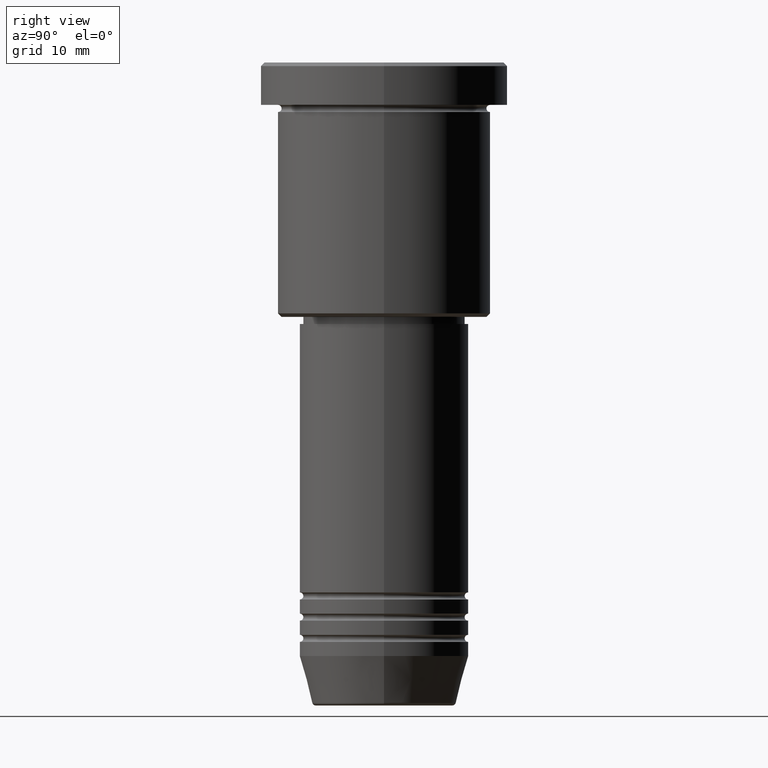
[diagram: clean part render]
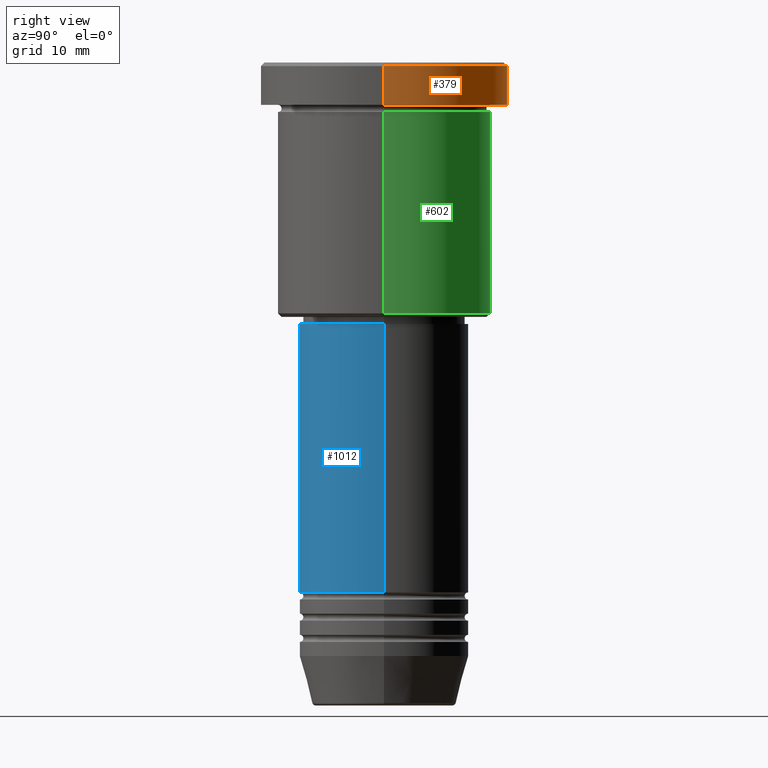
[diagram: same view with three faces highlighted in distinct colors, each labeled with its STEP entity id]
A machine part, right view with three faces highlighted in distinct colors.
Their STEP definitions:

[orange] entity #379 — the highlighted cylindrical surface (partial cylindrical patch) has radius 17.5 mm, axis along (-0, -0, 1).
#19 = VERTEX_POINT ( 'NONE', #635 ) ;
#92 = CARTESIAN_POINT ( 'NONE',  ( -17.50000000000000000, 2.143131898507868248E-15, -5.999999999999995559 ) ) ;
#105 = VECTOR ( 'NONE', #193, 1000.000000000000000 ) ;
#158 = DIRECTION ( 'NONE',  ( -0.000000000000000000, -0.000000000000000000, 1.000000000000000000 ) ) ;
#193 = DIRECTION ( 'NONE',  ( -0.000000000000000000, -0.000000000000000000, 1.000000000000000000 ) ) ;
#219 = ORIENTED_EDGE ( 'NONE', *, *, #1150, .T. ) ;
#221 = DIRECTION ( 'NONE',  ( 1.000000000000000000, 0.000000000000000000, 0.000000000000000000 ) ) ;
#238 = AXIS2_PLACEMENT_3D ( 'NONE', #676, #1027, #744 ) ;
#345 = EDGE_CURVE ( 'NONE', #19, #806, #801, .T. ) ;
#379 = ADVANCED_FACE ( 'NONE', ( #725 ), #1084, .T. ) ;
#393 = CIRCLE ( 'NONE', #694, 17.50000000000000000 ) ;
#430 = CARTESIAN_POINT ( 'NONE',  ( -17.50000000000000000, 2.143131898507868248E-15, 0.000000000000000000 ) ) ;
#509 = AXIS2_PLACEMENT_3D ( 'NONE', #636, #1077, #627 ) ;
#521 = CARTESIAN_POINT ( 'NONE',  ( 17.50000000000000000, 0.000000000000000000, -0.5000000000000142109 ) ) ;
#540 = CARTESIAN_POINT ( 'NONE',  ( -17.50000000000000000, 2.143131898507868248E-15, -0.5000000000000142109 ) ) ;
#582 = CARTESIAN_POINT ( 'NONE',  ( 0.000000000000000000, 0.000000000000000000, -5.999999999999995559 ) ) ;
#627 = DIRECTION ( 'NONE',  ( 1.000000000000000000, 0.000000000000000000, 0.000000000000000000 ) ) ;
#631 = LINE ( 'NONE', #430, #738 ) ;
#635 = CARTESIAN_POINT ( 'NONE',  ( 17.50000000000000000, 0.000000000000000000, -5.999999999999995559 ) ) ;
#636 = CARTESIAN_POINT ( 'NONE',  ( 0.000000000000000000, 0.000000000000000000, 0.000000000000000000 ) ) ;
#646 = CARTESIAN_POINT ( 'NONE',  ( 17.50000000000000000, 0.000000000000000000, 0.000000000000000000 ) ) ;
#647 = ORIENTED_EDGE ( 'NONE', *, *, #345, .F. ) ;
#676 = CARTESIAN_POINT ( 'NONE',  ( 0.000000000000000000, 0.000000000000000000, -0.5000000000000142109 ) ) ;
#694 = AXIS2_PLACEMENT_3D ( 'NONE', #582, #925, #221 ) ;
#725 = FACE_OUTER_BOUND ( 'NONE', #1002, .T. ) ;
#733 = EDGE_CURVE ( 'NONE', #932, #840, #631, .T. ) ;
#738 = VECTOR ( 'NONE', #158, 1000.000000000000000 ) ;
#744 = DIRECTION ( 'NONE',  ( 1.000000000000000000, 0.000000000000000000, 0.000000000000000000 ) ) ;
#801 = LINE ( 'NONE', #646, #105 ) ;
#806 = VERTEX_POINT ( 'NONE', #521 ) ;
#840 = VERTEX_POINT ( 'NONE', #540 ) ;
#912 = ORIENTED_EDGE ( 'NONE', *, *, #1147, .T. ) ;
#925 = DIRECTION ( 'NONE',  ( -0.000000000000000000, -0.000000000000000000, 1.000000000000000000 ) ) ;
#932 = VERTEX_POINT ( 'NONE', #92 ) ;
#1002 = EDGE_LOOP ( 'NONE', ( #219, #1060, #912, #647 ) ) ;
#1020 = CIRCLE ( 'NONE', #238, 17.50000000000000000 ) ;
#1027 = DIRECTION ( 'NONE',  ( 0.000000000000000000, 0.000000000000000000, -1.000000000000000000 ) ) ;
#1060 = ORIENTED_EDGE ( 'NONE', *, *, #733, .T. ) ;
#1077 = DIRECTION ( 'NONE',  ( -0.000000000000000000, -0.000000000000000000, 1.000000000000000000 ) ) ;
#1084 = CYLINDRICAL_SURFACE ( 'NONE', #509, 17.50000000000000000 ) ;
#1147 = EDGE_CURVE ( 'NONE', #840, #806, #1020, .T. ) ;
#1150 = EDGE_CURVE ( 'NONE', #19, #932, #393, .T. ) ;

[blue] entity #1012 — the highlighted cylindrical surface (partial cylindrical patch) has radius 12 mm, axis along (-0, -0, 1).
#17 = CYLINDRICAL_SURFACE ( 'NONE', #1019, 12.00000000000000000 ) ;
#22 = CARTESIAN_POINT ( 'NONE',  ( 12.00000000000000000, 0.000000000000000000, 0.000000000000000000 ) ) ;
#56 = CARTESIAN_POINT ( 'NONE',  ( 0.000000000000000000, 0.000000000000000000, -36.99999999999996447 ) ) ;
#96 = EDGE_CURVE ( 'NONE', #200, #1051, #977, .T. ) ;
#100 = DIRECTION ( 'NONE',  ( -0.000000000000000000, -0.000000000000000000, 1.000000000000000000 ) ) ;
#110 = EDGE_CURVE ( 'NONE', #621, #200, #306, .T. ) ;
#113 = FACE_OUTER_BOUND ( 'NONE', #698, .T. ) ;
#121 = ORIENTED_EDGE ( 'NONE', *, *, #110, .F. ) ;
#141 = CARTESIAN_POINT ( 'NONE',  ( 12.00000000000000000, 0.000000000000000000, -74.99999999999997158 ) ) ;
#159 = DIRECTION ( 'NONE',  ( 1.000000000000000000, 0.000000000000000000, 0.000000000000000000 ) ) ;
#200 = VERTEX_POINT ( 'NONE', #577 ) ;
#225 = EDGE_CURVE ( 'NONE', #1148, #1051, #984, .T. ) ;
#283 = CIRCLE ( 'NONE', #940, 12.00000000000000000 ) ;
#306 = LINE ( 'NONE', #678, #993 ) ;
#369 = CARTESIAN_POINT ( 'NONE',  ( -12.00000000000000000, 1.469576158976823947E-15, -74.99999999999997158 ) ) ;
#389 = DIRECTION ( 'NONE',  ( -0.000000000000000000, -0.000000000000000000, 1.000000000000000000 ) ) ;
#394 = DIRECTION ( 'NONE',  ( 1.000000000000000000, 0.000000000000000000, 0.000000000000000000 ) ) ;
#395 = ORIENTED_EDGE ( 'NONE', *, *, #445, .T. ) ;
#409 = ORIENTED_EDGE ( 'NONE', *, *, #96, .F. ) ;
#410 = DIRECTION ( 'NONE',  ( -0.000000000000000000, -0.000000000000000000, 1.000000000000000000 ) ) ;
#445 = EDGE_CURVE ( 'NONE', #621, #1148, #283, .T. ) ;
#468 = VECTOR ( 'NONE', #389, 1000.000000000000000 ) ;
#577 = CARTESIAN_POINT ( 'NONE',  ( -12.00000000000000000, 1.469576158976823947E-15, -36.99999999999996447 ) ) ;
#578 = CARTESIAN_POINT ( 'NONE',  ( 0.000000000000000000, 0.000000000000000000, 0.000000000000000000 ) ) ;
#621 = VERTEX_POINT ( 'NONE', #369 ) ;
#678 = CARTESIAN_POINT ( 'NONE',  ( -12.00000000000000000, 1.469576158976823947E-15, 0.000000000000000000 ) ) ;
#698 = EDGE_LOOP ( 'NONE', ( #121, #395, #873, #409 ) ) ;
#748 = DIRECTION ( 'NONE',  ( 1.000000000000000000, 0.000000000000000000, 0.000000000000000000 ) ) ;
#833 = DIRECTION ( 'NONE',  ( -0.000000000000000000, -0.000000000000000000, 1.000000000000000000 ) ) ;
#839 = AXIS2_PLACEMENT_3D ( 'NONE', #56, #1057, #394 ) ;
#873 = ORIENTED_EDGE ( 'NONE', *, *, #225, .T. ) ;
#909 = CARTESIAN_POINT ( 'NONE',  ( 0.000000000000000000, 0.000000000000000000, -74.99999999999997158 ) ) ;
#940 = AXIS2_PLACEMENT_3D ( 'NONE', #909, #100, #159 ) ;
#977 = CIRCLE ( 'NONE', #839, 12.00000000000000000 ) ;
#984 = LINE ( 'NONE', #22, #468 ) ;
#993 = VECTOR ( 'NONE', #410, 1000.000000000000000 ) ;
#1012 = ADVANCED_FACE ( 'NONE', ( #113 ), #17, .T. ) ;
#1019 = AXIS2_PLACEMENT_3D ( 'NONE', #578, #833, #748 ) ;
#1022 = CARTESIAN_POINT ( 'NONE',  ( 12.00000000000000000, 0.000000000000000000, -36.99999999999996447 ) ) ;
#1051 = VERTEX_POINT ( 'NONE', #1022 ) ;
#1057 = DIRECTION ( 'NONE',  ( -0.000000000000000000, -0.000000000000000000, 1.000000000000000000 ) ) ;
#1148 = VERTEX_POINT ( 'NONE', #141 ) ;

[green] entity #602 — the highlighted cylindrical surface (partial cylindrical patch) has radius 15 mm, axis along (-0, -0, 1).
#23 = CIRCLE ( 'NONE', #104, 15.00000000000000000 ) ;
#41 = CARTESIAN_POINT ( 'NONE',  ( -15.00000000000000000, 1.836970198721029589E-15, -6.999999999999995559 ) ) ;
#74 = VERTEX_POINT ( 'NONE', #625 ) ;
#79 = EDGE_CURVE ( 'NONE', #1134, #311, #23, .T. ) ;
#83 = DIRECTION ( 'NONE',  ( -0.000000000000000000, -0.000000000000000000, 1.000000000000000000 ) ) ;
#102 = VERTEX_POINT ( 'NONE', #41 ) ;
#104 = AXIS2_PLACEMENT_3D ( 'NONE', #959, #531, #892 ) ;
#106 = DIRECTION ( 'NONE',  ( -0.000000000000000000, -0.000000000000000000, 1.000000000000000000 ) ) ;
#115 = ORIENTED_EDGE ( 'NONE', *, *, #79, .T. ) ;
#120 = EDGE_LOOP ( 'NONE', ( #115, #640, #398, #1031 ) ) ;
#148 = DIRECTION ( 'NONE',  ( -0.000000000000000000, -0.000000000000000000, 1.000000000000000000 ) ) ;
#230 = CARTESIAN_POINT ( 'NONE',  ( -15.00000000000000000, 1.836970198721029589E-15, 0.000000000000000000 ) ) ;
#243 = CARTESIAN_POINT ( 'NONE',  ( 15.00000000000000000, 0.000000000000000000, -35.49999999999999289 ) ) ;
#287 = EDGE_CURVE ( 'NONE', #311, #102, #1032, .T. ) ;
#288 = DIRECTION ( 'NONE',  ( 1.000000000000000000, 0.000000000000000000, 0.000000000000000000 ) ) ;
#295 = VECTOR ( 'NONE', #942, 1000.000000000000000 ) ;
#311 = VERTEX_POINT ( 'NONE', #538 ) ;
#334 = AXIS2_PLACEMENT_3D ( 'NONE', #503, #148, #864 ) ;
#351 = LINE ( 'NONE', #726, #1000 ) ;
#371 = CARTESIAN_POINT ( 'NONE',  ( 0.000000000000000000, 0.000000000000000000, -6.999999999999995559 ) ) ;
#398 = ORIENTED_EDGE ( 'NONE', *, *, #891, .F. ) ;
#452 = CIRCLE ( 'NONE', #634, 15.00000000000000000 ) ;
#503 = CARTESIAN_POINT ( 'NONE',  ( 0.000000000000000000, 0.000000000000000000, 0.000000000000000000 ) ) ;
#531 = DIRECTION ( 'NONE',  ( -0.000000000000000000, -0.000000000000000000, 1.000000000000000000 ) ) ;
#538 = CARTESIAN_POINT ( 'NONE',  ( -15.00000000000000000, 1.836970198721029589E-15, -35.49999999999999289 ) ) ;
#602 = ADVANCED_FACE ( 'NONE', ( #946 ), #771, .T. ) ;
#625 = CARTESIAN_POINT ( 'NONE',  ( 15.00000000000000000, 0.000000000000000000, -6.999999999999995559 ) ) ;
#634 = AXIS2_PLACEMENT_3D ( 'NONE', #371, #83, #288 ) ;
#640 = ORIENTED_EDGE ( 'NONE', *, *, #287, .T. ) ;
#726 = CARTESIAN_POINT ( 'NONE',  ( 15.00000000000000000, 0.000000000000000000, 0.000000000000000000 ) ) ;
#771 = CYLINDRICAL_SURFACE ( 'NONE', #334, 15.00000000000000000 ) ;
#864 = DIRECTION ( 'NONE',  ( 1.000000000000000000, 0.000000000000000000, 0.000000000000000000 ) ) ;
#891 = EDGE_CURVE ( 'NONE', #74, #102, #452, .T. ) ;
#892 = DIRECTION ( 'NONE',  ( -1.000000000000000000, 0.000000000000000000, 0.000000000000000000 ) ) ;
#942 = DIRECTION ( 'NONE',  ( -0.000000000000000000, -0.000000000000000000, 1.000000000000000000 ) ) ;
#946 = FACE_OUTER_BOUND ( 'NONE', #120, .T. ) ;
#959 = CARTESIAN_POINT ( 'NONE',  ( 0.000000000000000000, 0.000000000000000000, -35.49999999999999289 ) ) ;
#966 = EDGE_CURVE ( 'NONE', #1134, #74, #351, .T. ) ;
#1000 = VECTOR ( 'NONE', #106, 1000.000000000000000 ) ;
#1031 = ORIENTED_EDGE ( 'NONE', *, *, #966, .F. ) ;
#1032 = LINE ( 'NONE', #230, #295 ) ;
#1134 = VERTEX_POINT ( 'NONE', #243 ) ;